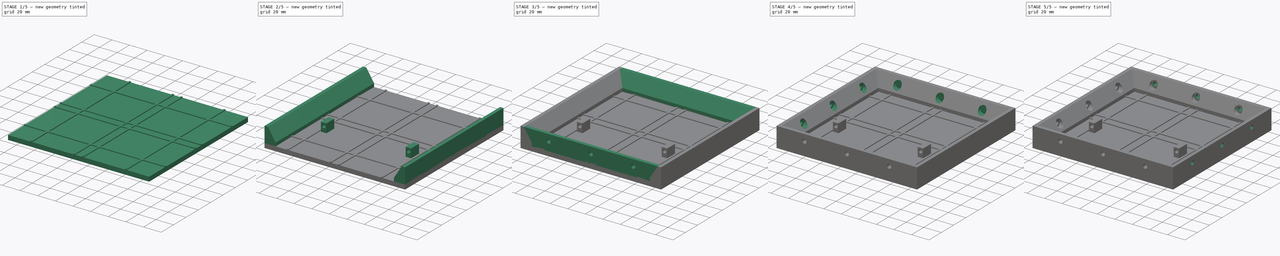
[diagram: build sequence overview — one tinted view per stage of 5, left to right]
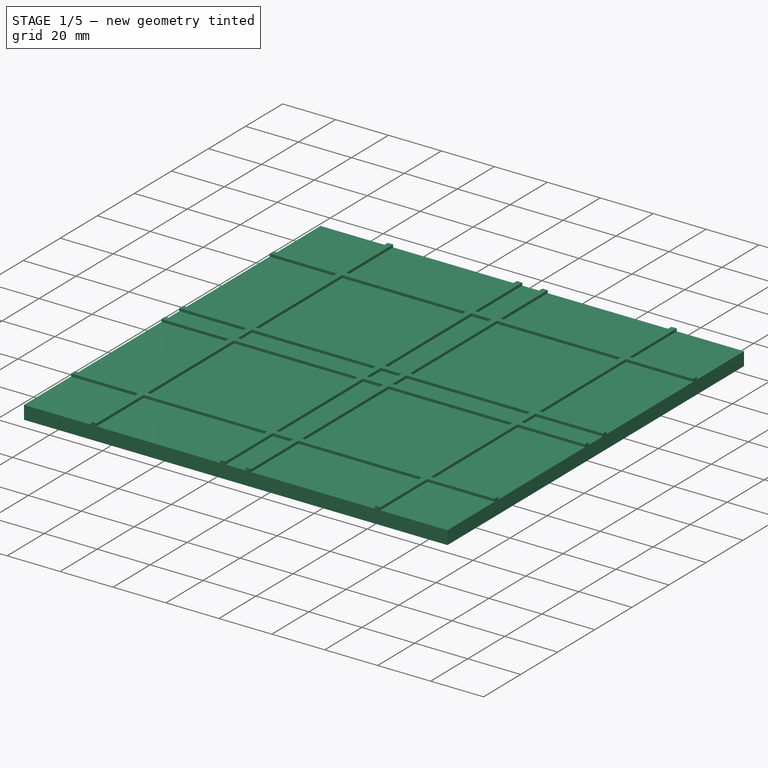
[diagram: stage 1 of 5 — iso view after this stage's code; geometry added in this stage tinted green]
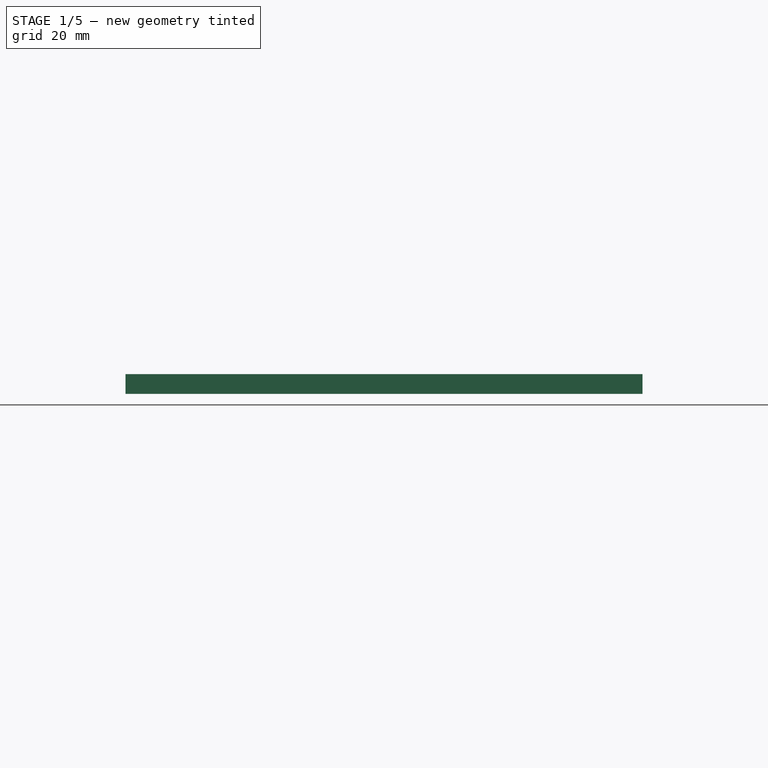
[diagram: stage 1 of 5 — front view after this stage's code; geometry added in this stage tinted green]
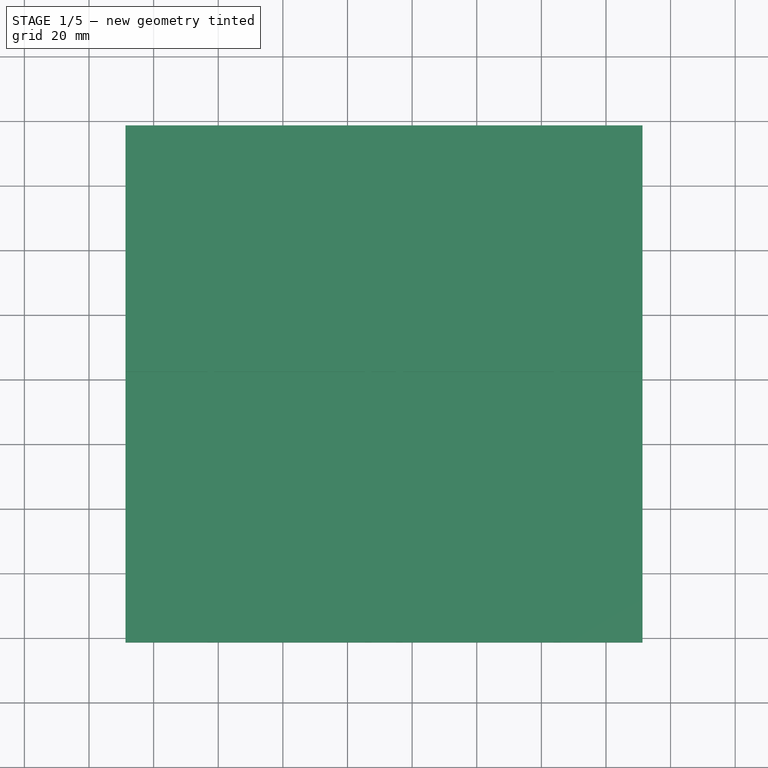
[diagram: stage 1 of 5 — top view after this stage's code; geometry added in this stage tinted green]
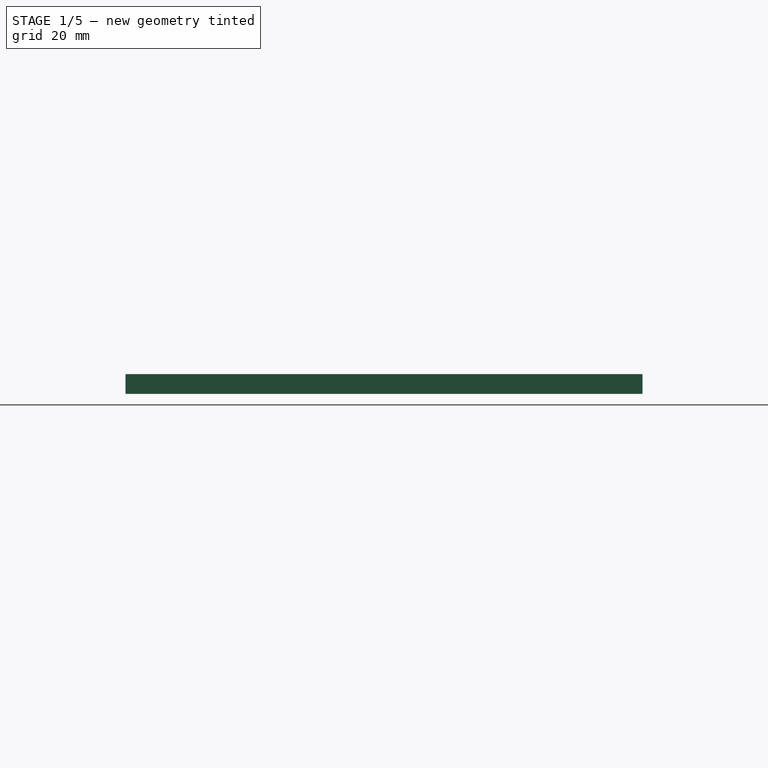
[diagram: stage 1 of 5 — right view after this stage's code; geometry added in this stage tinted green]
FCSTD DOCUMENT  (FreeCAD 0.18R16117 (Git))
Label: Bottom2
License: All rights reserved
LicenseURL: http://en.wikipedia.org/wiki/All_rights_reserved
objects: Sketcher::SketchObject×15, PartDesign::Pocket×9, PartDesign::Pad×6, PartDesign::Body×1
note: 46 computed .brp shape members not serialized (recipe doc carries the construction recipe); baked Part::Feature solids carry a one-line shape summary decoded from their .brp

FEATURE [Sketcher::SketchObject] Sketch
  MapMode = 5
  Support = -> [XY_Plane]
  sketch-geometry (4):
    g0: LineSegment StartX=-88.7119 StartY=58.658 StartZ=0 EndX=71.3081 EndY=58.658 EndZ=0
    g1: LineSegment StartX=71.3081 StartY=58.658 StartZ=0 EndX=71.3081 EndY=-101.362 EndZ=0
    g2: LineSegment StartX=71.3081 StartY=-101.362 StartZ=0 EndX=-88.7119 EndY=-101.362 EndZ=0
    g3: LineSegment StartX=-88.7119 StartY=-101.362 StartZ=0 EndX=-88.7119 EndY=58.658 EndZ=0
  constraints (10):
    c: Coincident(g0,g1)
    c: Coincident(g1,g2)
    c: Coincident(g2,g3)
    c: Coincident(g3,g0)
    c: Horizontal(g0)
    c: Horizontal(g2)
    c: Vertical(g1)
    c: Vertical(g3)
    c: Distance(g1) = 160.02
    c: Distance(g0) = 160.02
FEATURE [PartDesign::Pad] Pad
  Length = 5.08
  Length2 = 100
  Profile = -> Sketch
  Type = 0
FEATURE [Sketcher::SketchObject] Sketch001
  ExternalGeometry = -> [Pad]
  MapMode = 5
  Placement = pos=(0,0,5.08) rot=(0,0,1;0rad)
  Support = -> [Pad]
  sketch-geometry (21):
    g0: GeomPoint X=-63.3119 Y=58.658 Z=0
    g1: LineSegment StartX=-63.3119 StartY=58.658 StartZ=0 EndX=-61.2799 EndY=58.658 EndZ=0
    g2: LineSegment StartX=-61.2799 StartY=58.658 StartZ=0 EndX=-61.2799 EndY=-101.362 EndZ=0
    g3: LineSegment StartX=-61.2799 StartY=-101.362 StartZ=0 EndX=-63.3119 EndY=-101.362 EndZ=0
    g4: LineSegment StartX=-63.3119 StartY=-101.362 StartZ=0 EndX=-63.3119 EndY=58.658 EndZ=0
    g5: GeomPoint X=-63.3119 Y=-101.362 Z=0
    g6: GeomPoint X=45.9081 Y=58.658 Z=0
    g7: LineSegment StartX=43.8761 StartY=58.658 StartZ=0 EndX=45.9081 EndY=58.658 EndZ=0
    g8: LineSegment StartX=45.9081 StartY=58.658 StartZ=0 EndX=45.9081 EndY=-101.362 EndZ=0
    g9: LineSegment StartX=45.9081 StartY=-101.362 StartZ=0 EndX=43.8761 EndY=-101.362 EndZ=0
    g10: LineSegment StartX=43.8761 StartY=-101.362 StartZ=0 EndX=43.8761 EndY=58.658 EndZ=0
    g11: GeomPoint X=-12.5119 Y=58.658 Z=0
    g12: GeomPoint X=-4.89191 Y=58.658 Z=0
    g13: LineSegment StartX=-14.5439 StartY=58.658 StartZ=0 EndX=-12.5119 EndY=58.658 EndZ=0
    g14: LineSegment StartX=-12.5119 StartY=58.658 StartZ=0 EndX=-12.5119 EndY=-101.362 EndZ=0
    g15: LineSegment StartX=-12.5119 StartY=-101.362 StartZ=0 EndX=-14.5439 EndY=-101.362 EndZ=0
    g16: LineSegment StartX=-14.5439 StartY=-101.362 StartZ=0 EndX=-14.5439 EndY=58.658 EndZ=0
    g17: LineSegment StartX=-4.89191 StartY=58.658 StartZ=0 EndX=-2.85991 EndY=58.658 EndZ=0
    g18: LineSegment StartX=-2.85991 StartY=58.658 StartZ=0 EndX=-2.85991 EndY=-101.362 EndZ=0
    g19: LineSegment StartX=-2.85991 StartY=-101.362 StartZ=0 EndX=-4.89191 EndY=-101.362 EndZ=0
    g20: LineSegment StartX=-4.89191 StartY=-101.362 StartZ=0 EndX=-4.89191 EndY=58.658 EndZ=0
  constraints (53):
    c: PointOnObject(g0,g-3)
    c: Distance(g-3,g0) = 25.4
    c: Coincident(g1,g2)
    c: Coincident(g2,g3)
    c: Coincident(g3,g4)
    c: Coincident(g4,g1)
    c: Horizontal(g1)
    c: Horizontal(g3)
    c: Vertical(g2)
    c: Vertical(g4)
    c: Coincident(g1,g0)
    c: Distance(g1) = 2.032
    c: PointOnObject(g5,g-4)
    c: Coincident(g5,g3)
    c: PointOnObject(g6,g-3)
    c: Distance(g-3,g6) = 25.4
    c: Coincident(g7,g8)
    c: Coincident(g8,g9)
    c: Coincident(g9,g10)
    c: Coincident(g10,g7)
    c: Horizontal(g7)
    c: Horizontal(g9)
    c: Vertical(g8)
    c: Vertical(g10)
    c: Coincident(g7,g6)
    c: Distance(g7) = 2.032
    c: PointOnObject(g9,g-4)
    c: PointOnObject(g11,g-3)
    c: PointOnObject(g12,g-3)
    c: Distance(g11,g-6) = 76.2
    c: Distance(g12,g-5) = 76.2
    c: Coincident(g13,g14)
    c: Coincident(g14,g15)
    c: Coincident(g15,g16)
    c: Coincident(g16,g13)
    c: Horizontal(g13)
    c: Horizontal(g15)
    c: Vertical(g14)
    c: Vertical(g16)
    c: Coincident(g17,g18)
    c: Coincident(g18,g19)
    c: Coincident(g19,g20)
    c: Coincident(g20,g17)
    c: Horizontal(g17)
    c: Horizontal(g19)
    c: Vertical(g18)
    c: Vertical(g20)
    c: Coincident(g11,g13)
    c: Coincident(g17,g12)
    c: PointOnObject(g15,g-4)
    c: PointOnObject(g18,g-4)
    c: Distance(g17) = 2.032
    c: Distance(g13) = 2.032
FEATURE [PartDesign::Pad] Pad001
  BaseFeature = -> Pad
  Length = 1.016
  Length2 = 100
  Profile = -> Sketch001
  Type = 0
FEATURE [Sketcher::SketchObject] Sketch002
  ExternalGeometry = -> [Pad001]
  MapMode = 5
  Placement = pos=(0,0,5.08) rot=(0,0,1;0rad)
  Support = -> [Pad001]
  sketch-geometry (20):
    g0: GeomPoint X=-88.7119 Y=33.258 Z=0
    g1: LineSegment StartX=-88.7119 StartY=33.258 StartZ=0 EndX=71.3081 EndY=33.258 EndZ=0
    g2: LineSegment StartX=71.3081 StartY=33.258 StartZ=0 EndX=71.3081 EndY=31.226 EndZ=0
    g3: LineSegment StartX=71.3081 StartY=31.226 StartZ=0 EndX=-88.7119 EndY=31.226 EndZ=0
    g4: LineSegment StartX=-88.7119 StartY=31.226 StartZ=0 EndX=-88.7119 EndY=33.258 EndZ=0
    g5: GeomPoint X=-88.7119 Y=-75.962 Z=0
    g6: GeomPoint X=-88.7119 Y=-25.162 Z=0
    g7: GeomPoint X=-88.7119 Y=-17.542 Z=0
    g8: LineSegment StartX=-88.7119 StartY=-17.542 StartZ=0 EndX=71.3081 EndY=-17.542 EndZ=0
    g9: LineSegment StartX=71.3081 StartY=-17.542 StartZ=0 EndX=71.3081 EndY=-15.51 EndZ=0
    g10: LineSegment StartX=71.3081 StartY=-15.51 StartZ=0 EndX=-88.7119 EndY=-15.51 EndZ=0
    g11: LineSegment StartX=-88.7119 StartY=-15.51 StartZ=0 EndX=-88.7119 EndY=-17.542 EndZ=0
    g12: LineSegment StartX=-88.7119 StartY=-25.162 StartZ=0 EndX=71.3081 EndY=-25.162 EndZ=0
    g13: LineSegment StartX=71.3081 StartY=-25.162 StartZ=0 EndX=71.3081 EndY=-27.194 EndZ=0
    g14: LineSegment StartX=71.3081 StartY=-27.194 StartZ=0 EndX=-88.7119 EndY=-27.194 EndZ=0
    g15: LineSegment StartX=-88.7119 StartY=-27.194 StartZ=0 EndX=-88.7119 EndY=-25.162 EndZ=0
    g16: LineSegment StartX=-88.7119 StartY=-75.962 StartZ=0 EndX=71.3081 EndY=-75.962 EndZ=0
    g17: LineSegment StartX=71.3081 StartY=-75.962 StartZ=0 EndX=71.3081 EndY=-73.93 EndZ=0
    g18: LineSegment StartX=71.3081 StartY=-73.93 StartZ=0 EndX=-88.7119 EndY=-73.93 EndZ=0
    g19: LineSegment StartX=-88.7119 StartY=-73.93 StartZ=0 EndX=-88.7119 EndY=-75.962 EndZ=0
  constraints (52):
    c: PointOnObject(g0,g-3)
    c: Distance(g-3,g0) = 25.4
    c: Coincident(g1,g2)
    c: Coincident(g2,g3)
    c: Coincident(g3,g4)
    c: Coincident(g4,g1)
    c: Horizontal(g1)
    c: Horizontal(g3)
    c: Vertical(g2)
    c: Vertical(g4)
    c: Coincident(g1,g0)
    c: PointOnObject(g2,g-4)
    c: Distance(g4) = 2.032
    c: PointOnObject(g5,g-3)
    c: PointOnObject(g6,g-3)
    c: PointOnObject(g7,g-3)
    c: Distance(g-3,g7) = 76.2
    c: Distance(g-3,g6) = 76.2
    c: Distance(g-3,g5) = 25.4
    c: Coincident(g8,g9)
    c: Coincident(g9,g10)
    c: Coincident(g10,g11)
    c: Coincident(g11,g8)
    c: Horizontal(g8)
    c: Horizontal(g10)
    c: Vertical(g9)
    c: Vertical(g11)
    c: Coincident(g12,g13)
    c: Coincident(g13,g14)
    c: Coincident(g14,g15)
    c: Coincident(g15,g12)
    c: Horizontal(g12)
    c: Horizontal(g14)
    c: Vertical(g13)
    c: Vertical(g15)
    c: Coincident(g16,g17)
    c: Coincident(g17,g18)
    c: Coincident(g18,g19)
    c: Coincident(g19,g16)
    c: Horizontal(g16)
    c: Horizontal(g18)
    c: Vertical(g17)
    c: Vertical(g19)
    c: Coincident(g8,g7)
    c: Coincident(g12,g6)
    c: Coincident(g16,g5)
    c: Distance(g19) = 2.032
    c: Distance(g15) = 2.032
    c: Distance(g11) = 2.032
    c: PointOnObject(g9,g-4)
    c: PointOnObject(g13,g-4)
    c: PointOnObject(g17,g-4)
FEATURE [PartDesign::Pad] Pad002
  BaseFeature = -> Pad001
  Length = 1.016
  Length2 = 100
  Profile = -> Sketch002
  Type = 0
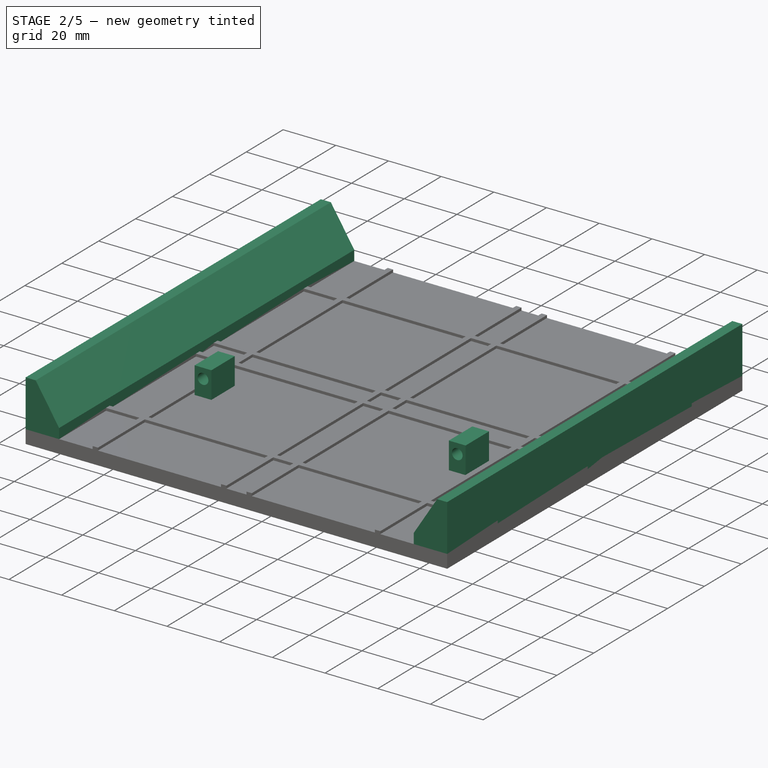
[diagram: stage 2 of 5 — iso view after this stage's code; geometry added in this stage tinted green]
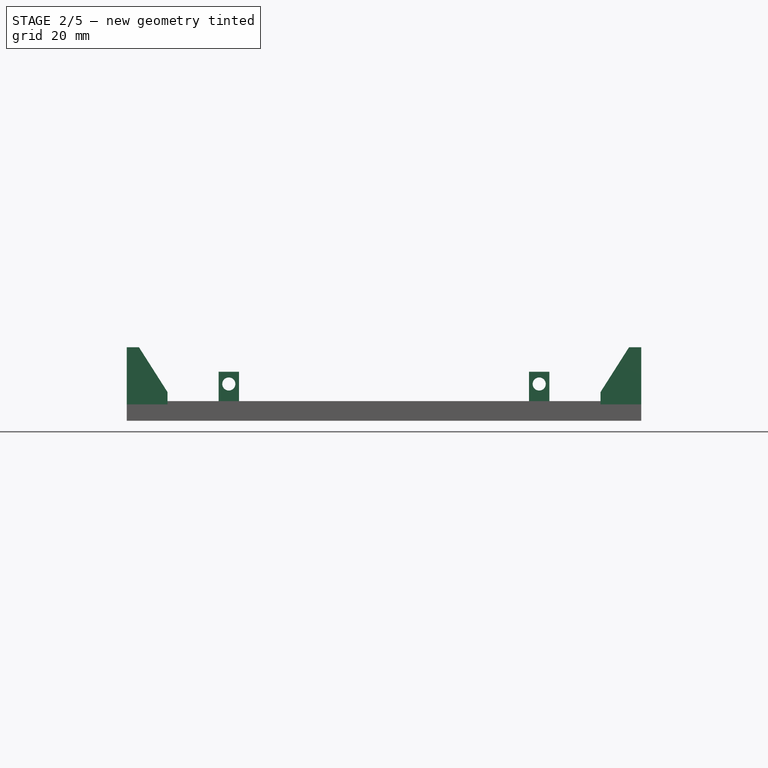
[diagram: stage 2 of 5 — front view after this stage's code; geometry added in this stage tinted green]
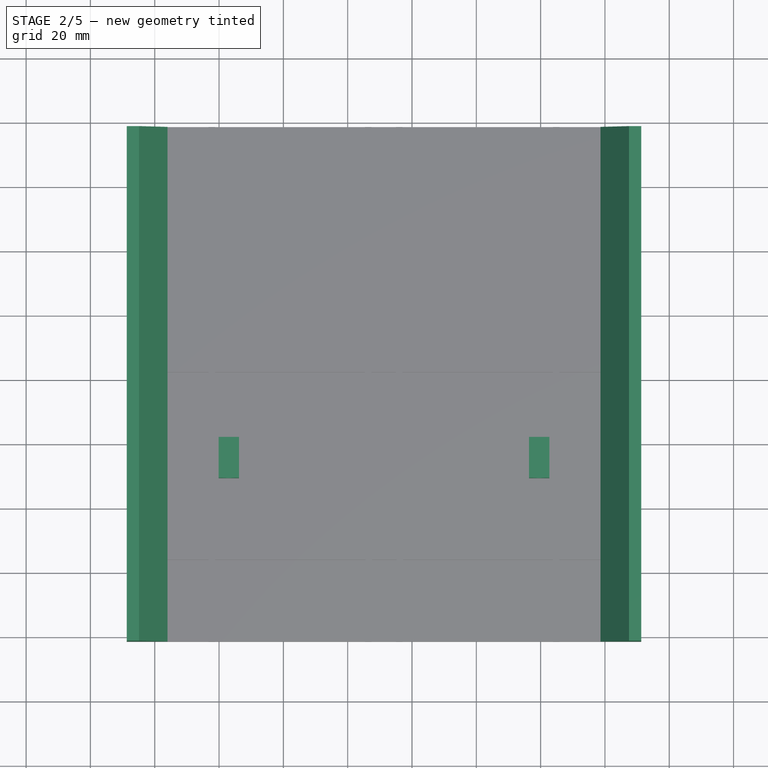
[diagram: stage 2 of 5 — top view after this stage's code; geometry added in this stage tinted green]
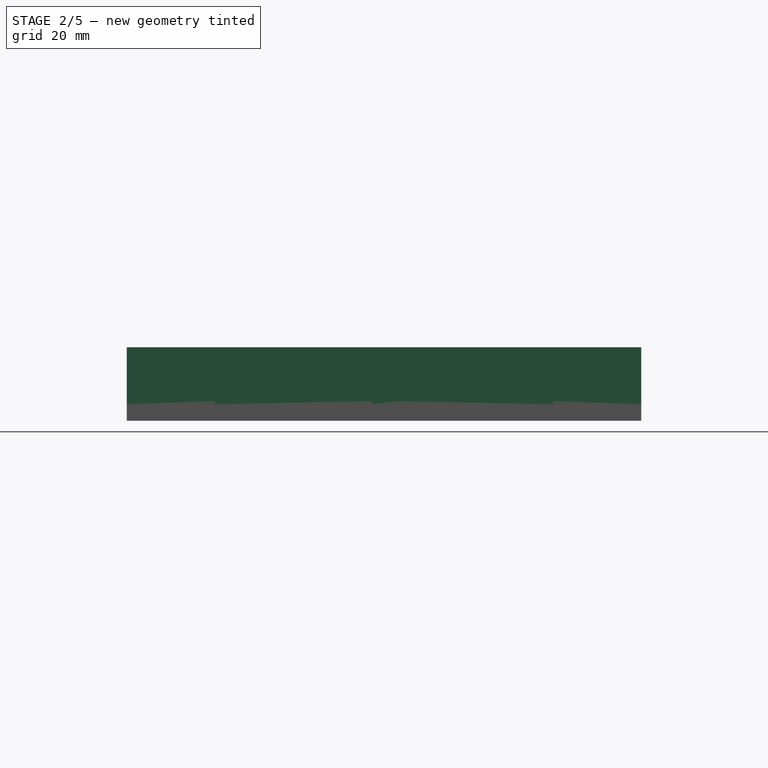
[diagram: stage 2 of 5 — right view after this stage's code; geometry added in this stage tinted green]
FEATURE [Sketcher::SketchObject] Sketch003
  ExternalGeometry = -> [Pad002]
  MapMode = 5
  Placement = pos=(0,0,5.08) rot=(0,0,1;0rad)
  Support = -> [Pad002]
  sketch-geometry (8):
    g0: LineSegment StartX=-53.7869 StartY=-50.562 StartZ=0 EndX=-60.1369 EndY=-50.562 EndZ=0
    g1: LineSegment StartX=-60.1369 StartY=-50.562 StartZ=0 EndX=-60.1369 EndY=-37.862 EndZ=0
    g2: LineSegment StartX=-60.1369 StartY=-37.862 StartZ=0 EndX=-53.7869 EndY=-37.862 EndZ=0
    g3: LineSegment StartX=-53.7869 StartY=-37.862 StartZ=0 EndX=-53.7869 EndY=-50.562 EndZ=0
    g4: LineSegment StartX=42.7331 StartY=-50.562 StartZ=0 EndX=36.3831 EndY=-50.562 EndZ=0
    g5: LineSegment StartX=36.3831 StartY=-50.562 StartZ=0 EndX=36.3831 EndY=-37.862 EndZ=0
    g6: LineSegment StartX=36.3831 StartY=-37.862 StartZ=0 EndX=42.7331 EndY=-37.862 EndZ=0
    g7: LineSegment StartX=42.7331 StartY=-37.862 StartZ=0 EndX=42.7331 EndY=-50.562 EndZ=0
  constraints (24):
    c: Coincident(g0,g1)
    c: Coincident(g1,g2)
    c: Coincident(g2,g3)
    c: Coincident(g3,g0)
    c: Horizontal(g0)
    c: Horizontal(g2)
    c: Vertical(g1)
    c: Vertical(g3)
    c: Coincident(g4,g5)
    c: Coincident(g5,g6)
    c: Coincident(g6,g7)
    c: Coincident(g7,g4)
    c: Horizontal(g4)
    c: Horizontal(g6)
    c: Vertical(g5)
    c: Vertical(g7)
    c: Distance(g2) = 6.35
    c: Distance(g1) = 12.7
    c: Distance(g4) = 6.35
    c: Distance(g5) = 12.7
    c: DistanceX(g0,g4) = 102.87
    c: Distance(g0,g-3) = 50.8
    c: Distance(g4,g-9) = 50.8
    c: Distance(g1,g-17) = 28.575
FEATURE [PartDesign::Pad] Pad003
  BaseFeature = -> Pad002
  Length = 10.16
  Length2 = 100
  Profile = -> Sketch003
  Type = 0
FEATURE [Sketcher::SketchObject] Sketch004
  ExternalGeometry = -> [Pad003]
  MapMode = 5
  Placement = pos=(0,-50.562,0) rot=(1,0,0;1.5708rad)
  Support = -> [Pad003]
  sketch-geometry (10):
    g0: LineSegment [constr] StartX=-60.1369 StartY=15.24 StartZ=0 EndX=-53.7869 EndY=5.08 EndZ=0
    g1: LineSegment [constr] StartX=-53.7869 StartY=15.24 StartZ=0 EndX=-60.1369 EndY=5.08 EndZ=0
    g2: LineSegment [constr] StartX=36.3831 StartY=15.24 StartZ=0 EndX=42.7331 EndY=5.08 EndZ=0
    g3: LineSegment [constr] StartX=42.7331 StartY=15.24 StartZ=0 EndX=36.3831 EndY=5.08 EndZ=0
    g4: Circle CenterX=39.5581 CenterY=11.43 CenterZ=0 NormalX=0 NormalY=0 NormalZ=1 AngleXU=0 Radius=2.032
    g5: Circle CenterX=-56.9619 CenterY=11.43 CenterZ=0 NormalX=0 NormalY=0 NormalZ=1 AngleXU=0 Radius=2.032
    g6: LineSegment [constr] StartX=-56.9619 StartY=15.24 StartZ=0 EndX=-56.9619 EndY=5.08 EndZ=0
    g7: GeomPoint X=-56.9619 Y=10.16 Z=0
    g8: LineSegment [constr] StartX=39.5581 StartY=15.24 StartZ=0 EndX=39.5581 EndY=5.08 EndZ=0
    g9: GeomPoint X=39.5581 Y=10.16 Z=0
  constraints (26):
    c: Coincident(g0,g-6)
    c: Coincident(g0,g-5)
    c: Coincident(g1,g-5)
    c: Coincident(g1,g-6)
    c: Coincident(g2,g-10)
    c: Coincident(g2,g-8)
    c: Coincident(g3,g-9)
    c: Coincident(g3,g-10)
    c: Equal(g5,g4)
    c: Diameter(g5) = 4.064
    c: PointOnObject(g6,g-4)
    c: PointOnObject(g6,g-3)
    c: Vertical(g6)
    c: PointOnObject(g7,g0)
    c: PointOnObject(g7,g1)
    c: PointOnObject(g7,g6)
    c: PointOnObject(g5,g6)
    c: Distance(g5,g6) = 3.81
    c: PointOnObject(g8,g-9)
    c: PointOnObject(g8,g-7)
    c: Vertical(g8)
    c: PointOnObject(g9,g2)
    c: PointOnObject(g9,g3)
    c: PointOnObject(g9,g8)
    c: PointOnObject(g4,g8)
    c: Distance(g8,g4) = 3.81
FEATURE [PartDesign::Pocket] Pocket
  BaseFeature = -> Pad003
  Length = 12.7
  Length2 = 100
  Profile = -> Sketch004
  Type = 0
FEATURE [Sketcher::SketchObject] Sketch005
  ExternalGeometry = -> [Pocket]
  MapMode = 5
  Placement = pos=(0,-101.362,0) rot=(1,0,0;1.5708rad)
  Support = -> [Pocket]
  sketch-geometry (10):
    g0: LineSegment StartX=-88.7119 StartY=5.08 StartZ=0 EndX=-88.7119 EndY=22.86 EndZ=0
    g1: LineSegment StartX=-88.7119 StartY=22.86 StartZ=0 EndX=-84.9019 EndY=22.86 EndZ=0
    g2: LineSegment StartX=-84.9019 StartY=22.86 StartZ=0 EndX=-76.0119 EndY=8.89 EndZ=0
    g3: LineSegment StartX=-76.0119 StartY=8.89 StartZ=0 EndX=-76.0119 EndY=5.08 EndZ=0
    g4: LineSegment StartX=-76.0119 StartY=5.08 StartZ=0 EndX=-88.7119 EndY=5.08 EndZ=0
    g5: LineSegment StartX=71.3081 StartY=22.86 StartZ=0 EndX=67.4981 EndY=22.86 EndZ=0
    g6: LineSegment StartX=67.4981 StartY=22.86 StartZ=0 EndX=58.6081 EndY=8.89 EndZ=0
    g7: LineSegment StartX=58.6081 StartY=8.89 StartZ=0 EndX=58.6081 EndY=5.08 EndZ=0
    g8: LineSegment StartX=58.6081 StartY=5.08 StartZ=0 EndX=71.3081 EndY=5.08 EndZ=0
    g9: LineSegment StartX=71.3081 StartY=22.86 StartZ=0 EndX=71.3081 EndY=5.08 EndZ=0
  constraints (28):
    c: Coincident(g-3,g0)
    c: Vertical(g0)
    c: Coincident(g0,g1)
    c: Horizontal(g1)
    c: Coincident(g1,g2)
    c: Coincident(g2,g3)
    c: PointOnObject(g3,g-3)
    c: Vertical(g3)
    c: Coincident(g3,g4)
    c: Coincident(g4,g0)
    c: Distance(g1) = 3.81
    c: Distance(g3) = 3.81
    c: Distance(g4) = 12.7
    c: Distance(g0) = 17.78
    c: Horizontal(g5)
    c: Coincident(g5,g6)
    c: Coincident(g6,g7)
    c: Vertical(g7)
    c: Coincident(g7,g8)
    c: Distance(g5) = 3.81
    c: Distance(g7) = 3.81
    c: Distance(g8) = 12.7
    c: Coincident(g9,g5)
    c: Coincident(g9,g8)
    c: Vertical(g9)
    c: Distance(g9) = 17.78
    c: Coincident(g8,g-4)
    c: PointOnObject(g7,g-4)
FEATURE [PartDesign::Pad] Pad004
  BaseFeature = -> Pocket
  Length = 160.02
  Length2 = 160.02
  Offset = 203.2
  Profile = -> Sketch005
  Reversed = true
  Type = 0
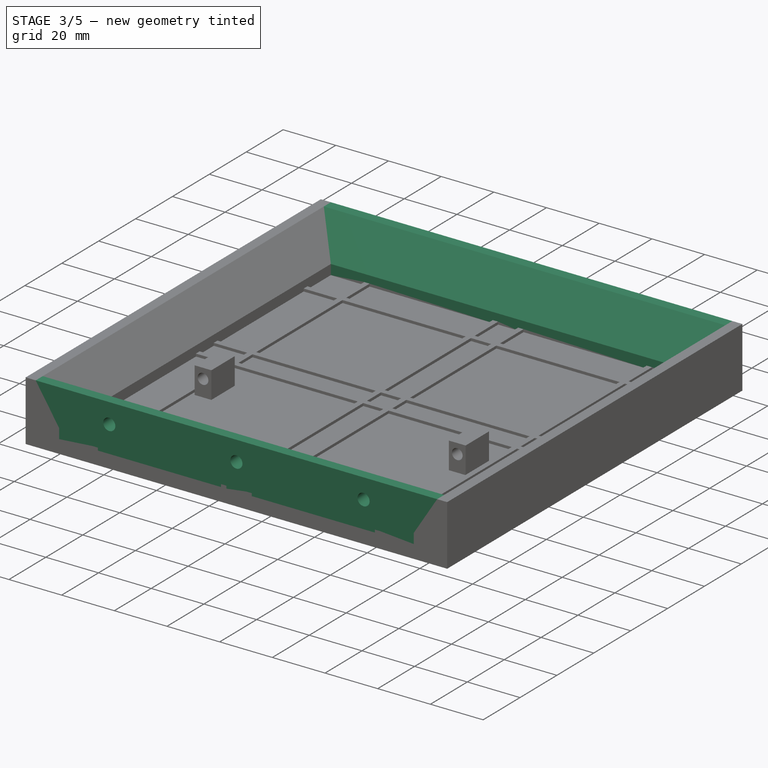
[diagram: stage 3 of 5 — iso view after this stage's code; geometry added in this stage tinted green]
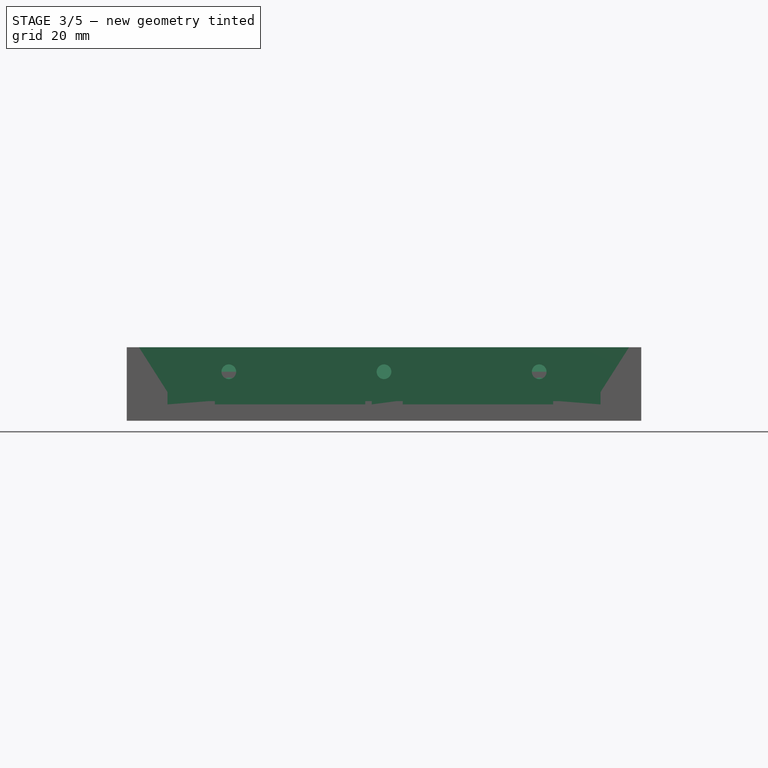
[diagram: stage 3 of 5 — front view after this stage's code; geometry added in this stage tinted green]
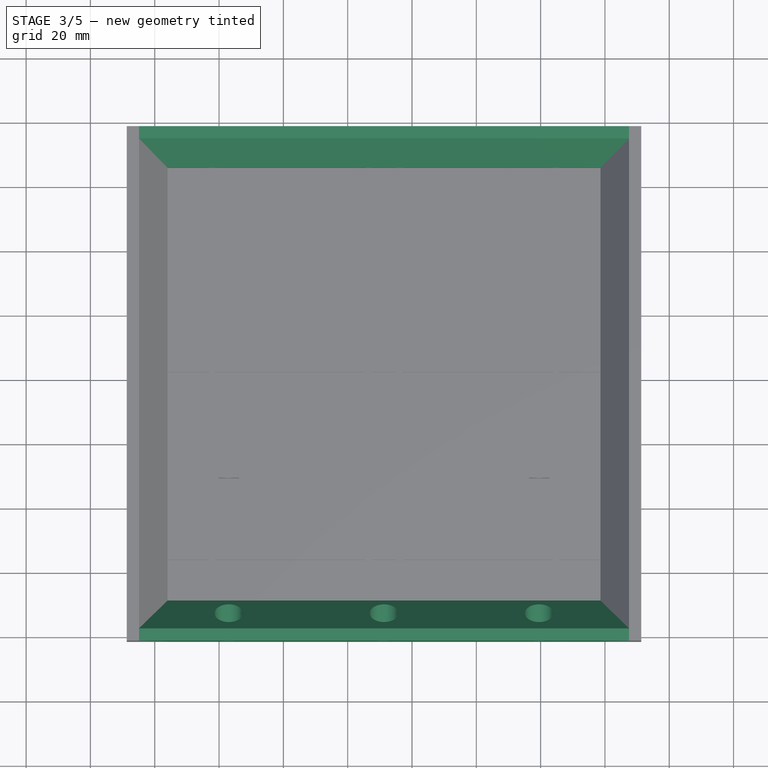
[diagram: stage 3 of 5 — top view after this stage's code; geometry added in this stage tinted green]
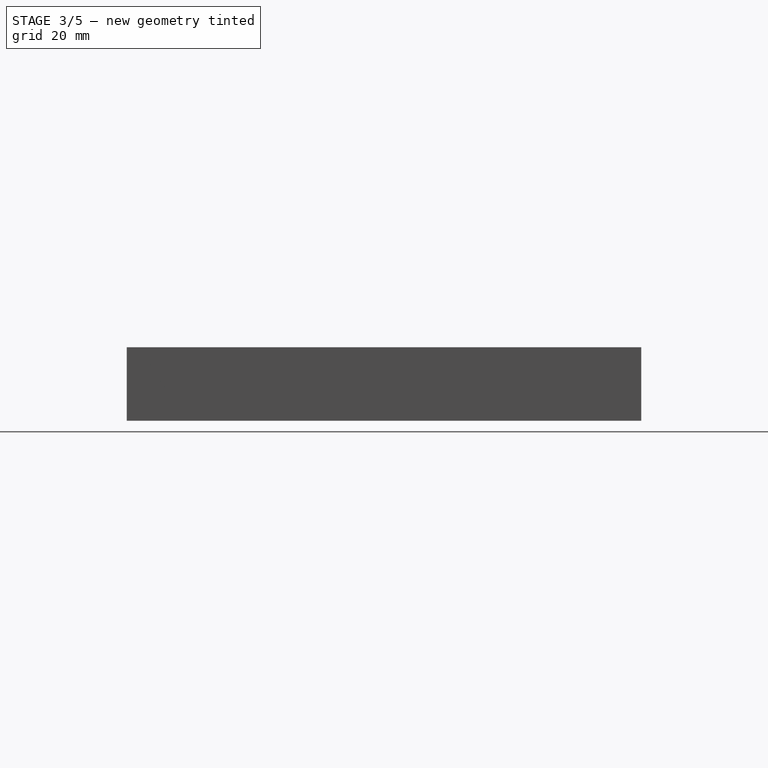
[diagram: stage 3 of 5 — right view after this stage's code; geometry added in this stage tinted green]
FEATURE [Sketcher::SketchObject] Sketch006
  ExternalGeometry = -> [Pad004]
  MapMode = 5
  Placement = pos=(71.3081,0,0) rot=(0.57735,0.57735,0.57735;2.0944rad)
  Support = -> [Pad004]
  sketch-geometry (10):
    g0: LineSegment StartX=-101.362 StartY=5.08 StartZ=0 EndX=-101.362 EndY=22.86 EndZ=0
    g1: LineSegment StartX=-101.362 StartY=22.86 StartZ=0 EndX=-97.552 EndY=22.86 EndZ=0
    g2: LineSegment StartX=-97.552 StartY=22.86 StartZ=0 EndX=-88.662 EndY=8.89 EndZ=0
    g3: LineSegment StartX=-88.662 StartY=8.89 StartZ=0 EndX=-88.662 EndY=5.08 EndZ=0
    g4: LineSegment StartX=-88.662 StartY=5.08 StartZ=0 EndX=-101.362 EndY=5.08 EndZ=0
    g5: LineSegment StartX=58.658 StartY=5.08 StartZ=0 EndX=58.658 EndY=22.86 EndZ=0
    g6: LineSegment StartX=58.658 StartY=22.86 StartZ=0 EndX=54.848 EndY=22.86 EndZ=0
    g7: LineSegment StartX=54.848 StartY=22.86 StartZ=0 EndX=45.958 EndY=8.89 EndZ=0
    g8: LineSegment StartX=45.958 StartY=8.89 StartZ=0 EndX=45.958 EndY=5.08 EndZ=0
    g9: LineSegment StartX=45.958 StartY=5.08 StartZ=0 EndX=58.658 EndY=5.08 EndZ=0
  constraints (28):
    c: Coincident(g-3,g0)
    c: Vertical(g0)
    c: Coincident(g0,g1)
    c: Horizontal(g1)
    c: Coincident(g1,g2)
    c: Coincident(g2,g3)
    c: PointOnObject(g3,g-3)
    c: Coincident(g3,g4)
    c: Coincident(g4,g0)
    c: Vertical(g3)
    c: Distance(g0) = 17.78
    c: Distance(g1) = 3.81
    c: Distance(g3) = 3.81
    c: Distance(g4) = 12.7
    c: Coincident(g-4,g5)
    c: Vertical(g5)
    c: Coincident(g5,g6)
    c: Coincident(g6,g7)
    c: Coincident(g7,g8)
    c: PointOnObject(g8,g-4)
    c: Vertical(g8)
    c: Coincident(g8,g9)
    c: Coincident(g9,g5)
    c: Horizontal(g6)
    c: Distance(g5) = 17.78
    c: Distance(g8) = 3.81
    c: Distance(g9) = 12.7
    c: Distance(g6) = 3.81
FEATURE [PartDesign::Pad] Pad005
  BaseFeature = -> Pad004
  Length = 160.02
  Length2 = 100
  Profile = -> Sketch006
  Reversed = true
  Type = 0
FEATURE [Sketcher::SketchObject] Sketch007
  ExternalGeometry = -> [Pad005]
  MapMode = 5
  Placement = pos=(0,-88.662,0) rot=(0,0.707107,0.707107;3.14159rad)
  Support = -> [Pad005]
  sketch-geometry (9):
    g0: LineSegment [constr] StartX=-39.5581 StartY=5.08 StartZ=0 EndX=-39.5581 EndY=15.24 EndZ=0
    g1: LineSegment [constr] StartX=-39.5581 StartY=15.24 StartZ=0 EndX=-71.3081 EndY=15.24 EndZ=0
    g2: Circle CenterX=-39.5581 CenterY=15.24 CenterZ=0 NormalX=0 NormalY=0 NormalZ=1 AngleXU=0 Radius=4.445
    g3: LineSegment [constr] StartX=88.7119 StartY=15.24 StartZ=0 EndX=56.9619 EndY=15.24 EndZ=0
    g4: LineSegment [constr] StartX=56.9619 StartY=15.24 StartZ=0 EndX=56.9619 EndY=5.08 EndZ=0
    g5: LineSegment [constr] StartX=-39.5581 StartY=15.24 StartZ=0 EndX=8.70191 EndY=15.24 EndZ=0
    g6: LineSegment [constr] StartX=8.70191 StartY=15.24 StartZ=0 EndX=56.9619 EndY=15.24 EndZ=0
    g7: Circle CenterX=56.9619 CenterY=15.24 CenterZ=0 NormalX=0 NormalY=0 NormalZ=1 AngleXU=0 Radius=4.445
    g8: Circle CenterX=8.70191 CenterY=15.24 CenterZ=0 NormalX=0 NormalY=0 NormalZ=1 AngleXU=0 Radius=4.445
  constraints (25):
    c: PointOnObject(g0,g-5)
    c: Vertical(g0)
    c: Coincident(g1,g0)
    c: PointOnObject(g1,g-12)
    c: Horizontal(g1)
    c: Coincident(g2,g0)
    c: Diameter(g2) = 8.89
    c: Distance(g1) = 31.75
    c: Distance(g0) = 10.16
    c: PointOnObject(g3,g-17)
    c: Horizontal(g3)
    c: Coincident(g4,g3)
    c: PointOnObject(g4,g-9)
    c: Vertical(g4)
    c: Coincident(g5,g2)
    c: Horizontal(g5)
    c: Coincident(g6,g5)
    c: Coincident(g6,g3)
    c: Horizontal(g6)
    c: Equal(g6,g5)
    c: Equal(g3,g1)
    c: Coincident(g7,g3)
    c: Equal(g2,g7)
    c: Coincident(g8,g5)
    c: Equal(g8,g2)
FEATURE [PartDesign::Pocket] Pocket001
  BaseFeature = -> Pad005
  Length = 6.858
  Length2 = 100
  Profile = -> Sketch007
  Type = 0
FEATURE [Sketcher::SketchObject] Sketch008
  ExternalGeometry = -> [Pad005]
  MapMode = 5
  Placement = pos=(0,-88.662,0) rot=(0,0.707107,0.707107;3.14159rad)
  Support = -> [Pad005]
  sketch-geometry (9):
    g0: LineSegment [constr] StartX=-39.5581 StartY=5.08 StartZ=0 EndX=-39.5581 EndY=15.24 EndZ=0
    g1: LineSegment [constr] StartX=-39.5581 StartY=15.24 StartZ=0 EndX=-71.3081 EndY=15.24 EndZ=0
    g2: Circle CenterX=-39.5581 CenterY=15.24 CenterZ=0 NormalX=0 NormalY=0 NormalZ=1 AngleXU=0 Radius=2.286
    g3: LineSegment [constr] StartX=88.7119 StartY=15.24 StartZ=0 EndX=56.9619 EndY=15.24 EndZ=0
    g4: LineSegment [constr] StartX=56.9619 StartY=15.24 StartZ=0 EndX=56.9619 EndY=5.08 EndZ=0
    g5: LineSegment [constr] StartX=-39.5581 StartY=15.24 StartZ=0 EndX=8.70191 EndY=15.24 EndZ=0
    g6: LineSegment [constr] StartX=8.70191 StartY=15.24 StartZ=0 EndX=56.9619 EndY=15.24 EndZ=0
    g7: Circle CenterX=56.9619 CenterY=15.24 CenterZ=0 NormalX=0 NormalY=0 NormalZ=1 AngleXU=0 Radius=2.286
    g8: Circle CenterX=8.70191 CenterY=15.24 CenterZ=0 NormalX=0 NormalY=0 NormalZ=1 AngleXU=0 Radius=2.286
  constraints (25):
    c: PointOnObject(g0,g-5)
    c: Vertical(g0)
    c: Coincident(g1,g0)
    c: PointOnObject(g1,g-12)
    c: Horizontal(g1)
    c: Coincident(g2,g0)
    c: Diameter(g2) = 4.572
    c: Distance(g1) = 31.75
    c: Distance(g0) = 10.16
    c: PointOnObject(g3,g-17)
    c: Horizontal(g3)
    c: Coincident(g4,g3)
    c: PointOnObject(g4,g-9)
    c: Vertical(g4)
    c: Coincident(g5,g2)
    c: Horizontal(g5)
    c: Coincident(g6,g5)
    c: Coincident(g6,g3)
    c: Horizontal(g6)
    c: Equal(g6,g5)
    c: Equal(g3,g1)
    c: Coincident(g7,g3)
    c: Equal(g2,g7)
    c: Coincident(g8,g5)
    c: Equal(g8,g2)
FEATURE [PartDesign::Pocket] Pocket002
  BaseFeature = -> Pocket001
  Length = 12.7
  Length2 = 100
  Profile = -> Sketch008
  Type = 0
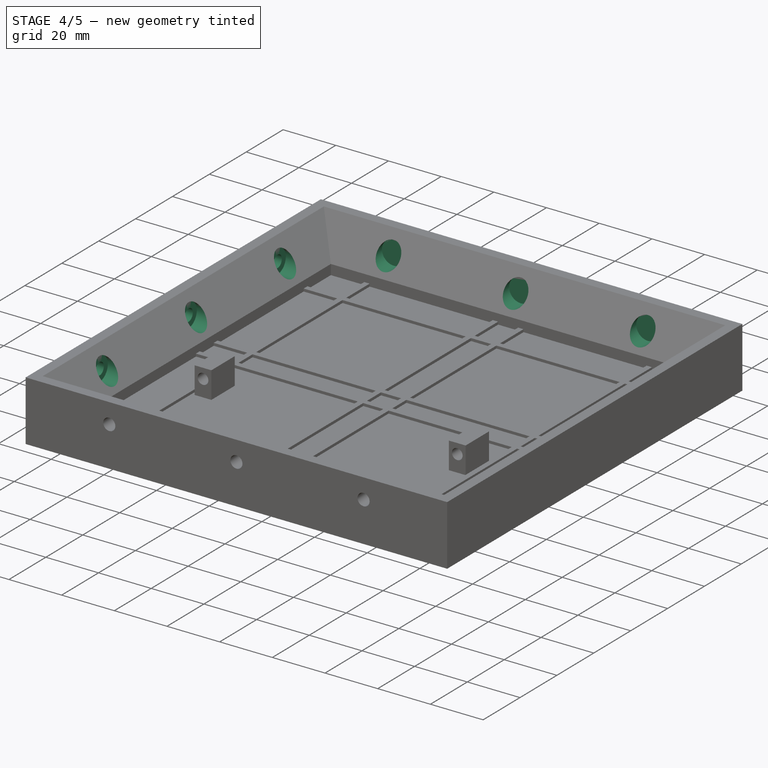
[diagram: stage 4 of 5 — iso view after this stage's code; geometry added in this stage tinted green]
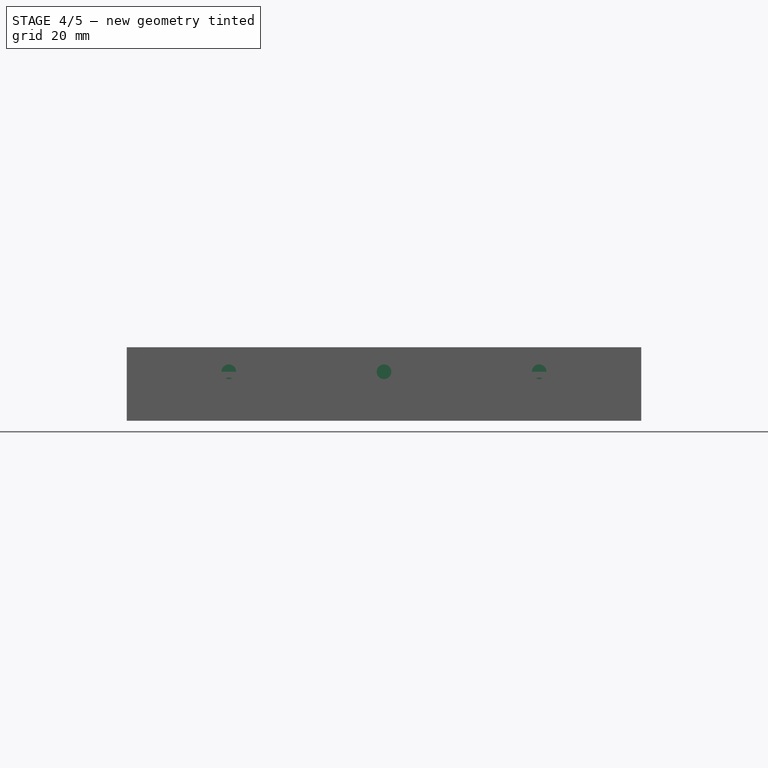
[diagram: stage 4 of 5 — front view after this stage's code; geometry added in this stage tinted green]
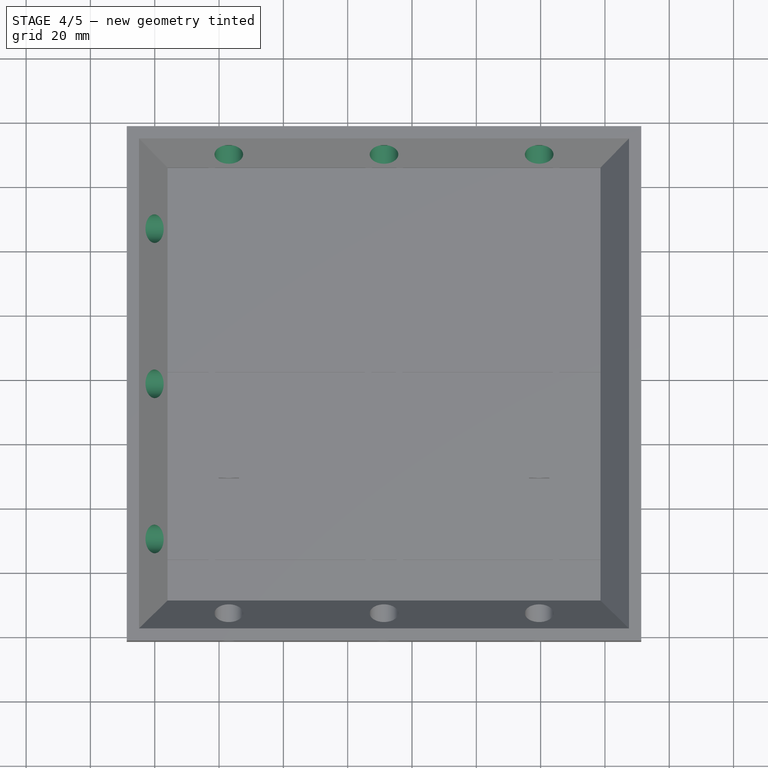
[diagram: stage 4 of 5 — top view after this stage's code; geometry added in this stage tinted green]
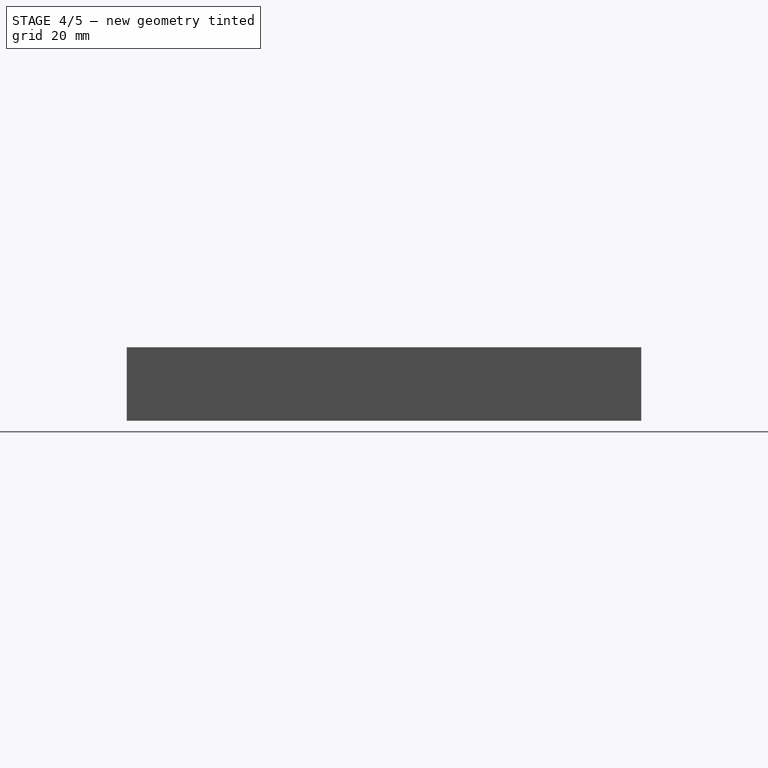
[diagram: stage 4 of 5 — right view after this stage's code; geometry added in this stage tinted green]
FEATURE [Sketcher::SketchObject] Sketch009
  ExternalGeometry = -> [Pocket002]
  MapMode = 5
  Placement = pos=(-76.0119,0,0) rot=(0.57735,0.57735,0.57735;2.0944rad)
  Support = -> [Pocket002]
  sketch-geometry (8):
    g0: LineSegment [constr] StartX=-101.362 StartY=15.24 StartZ=0 EndX=-69.612 EndY=15.24 EndZ=0
    g1: LineSegment [constr] StartX=-69.612 StartY=15.24 StartZ=0 EndX=-21.352 EndY=15.24 EndZ=0
    g2: LineSegment [constr] StartX=-21.352 StartY=15.24 StartZ=0 EndX=26.908 EndY=15.24 EndZ=0
    g3: LineSegment [constr] StartX=26.908 StartY=15.24 StartZ=0 EndX=58.658 EndY=15.24 EndZ=0
    g4: LineSegment [constr] StartX=-69.612 StartY=15.24 StartZ=0 EndX=-69.612 EndY=5.08 EndZ=0
    g5: Circle CenterX=-69.612 CenterY=15.24 CenterZ=0 NormalX=0 NormalY=0 NormalZ=1 AngleXU=0 Radius=4.445
    g6: Circle CenterX=-21.352 CenterY=15.24 CenterZ=0 NormalX=0 NormalY=0 NormalZ=1 AngleXU=0 Radius=4.445
    g7: Circle CenterX=26.908 CenterY=15.24 CenterZ=0 NormalX=0 NormalY=0 NormalZ=1 AngleXU=0 Radius=4.445
  constraints (22):
    c: PointOnObject(g0,g-3)
    c: Horizontal(g0)
    c: Coincident(g1,g0)
    c: Horizontal(g1)
    c: Coincident(g2,g1)
    c: Horizontal(g2)
    c: Coincident(g3,g2)
    c: PointOnObject(g3,g-4)
    c: Horizontal(g3)
    c: Distance(g0) = 31.75
    c: Equal(g0,g3)
    c: Equal(g2,g1)
    c: Coincident(g4,g0)
    c: PointOnObject(g4,g-7)
    c: Vertical(g4)
    c: Distance(g4) = 10.16
    c: Coincident(g5,g0)
    c: Coincident(g6,g1)
    c: Coincident(g7,g2)
    c: Equal(g5,g6)
    c: Equal(g6,g7)
    c: Diameter(g5) = 8.89
FEATURE [PartDesign::Pocket] Pocket003
  BaseFeature = -> Pocket002
  Length = 6.858
  Length2 = 100
  Profile = -> Sketch009
  Type = 0
FEATURE [Sketcher::SketchObject] Sketch010
  ExternalGeometry = -> [Pocket003]
  MapMode = 5
  Placement = pos=(-76.0119,0,0) rot=(0.57735,0.57735,0.57735;2.0944rad)
  Support = -> [Pocket003]
  sketch-geometry (8):
    g0: LineSegment [constr] StartX=-101.362 StartY=15.24 StartZ=0 EndX=-69.612 EndY=15.24 EndZ=0
    g1: LineSegment [constr] StartX=-69.612 StartY=15.24 StartZ=0 EndX=-69.612 EndY=5.08 EndZ=0
    g2: LineSegment [constr] StartX=-69.612 StartY=15.24 StartZ=0 EndX=-21.352 EndY=15.24 EndZ=0
    g3: LineSegment [constr] StartX=-21.352 StartY=15.24 StartZ=0 EndX=26.908 EndY=15.24 EndZ=0
    g4: LineSegment [constr] StartX=26.908 StartY=15.24 StartZ=0 EndX=58.658 EndY=15.24 EndZ=0
    g5: Circle CenterX=-69.612 CenterY=15.24 CenterZ=0 NormalX=0 NormalY=0 NormalZ=1 AngleXU=0 Radius=2.286
    g6: Circle CenterX=-21.352 CenterY=15.24 CenterZ=0 NormalX=0 NormalY=0 NormalZ=1 AngleXU=0 Radius=2.286
    g7: Circle CenterX=26.908 CenterY=15.24 CenterZ=0 NormalX=0 NormalY=0 NormalZ=1 AngleXU=0 Radius=2.286
  constraints (22):
    c: PointOnObject(g0,g-3)
    c: Horizontal(g0)
    c: Coincident(g1,g0)
    c: PointOnObject(g1,g-5)
    c: Vertical(g1)
    c: Coincident(g2,g0)
    c: Horizontal(g2)
    c: Coincident(g3,g2)
    c: Horizontal(g3)
    c: Coincident(g4,g3)
    c: PointOnObject(g4,g-4)
    c: Horizontal(g4)
    c: Equal(g0,g4)
    c: Equal(g2,g3)
    c: Distance(g0) = 31.75
    c: Distance(g1) = 10.16
    c: Coincident(g5,g0)
    c: Coincident(g6,g2)
    c: Coincident(g7,g3)
    c: Equal(g5,g6)
    c: Equal(g6,g7)
    c: Diameter(g5) = 4.572
FEATURE [PartDesign::Pocket] Pocket004
  BaseFeature = -> Pocket003
  Length = 12.7
  Length2 = 100
  Profile = -> Sketch010
  Type = 0
FEATURE [Sketcher::SketchObject] Sketch011
  ExternalGeometry = -> [Pocket004]
  MapMode = 5
  Placement = pos=(0,45.958,0) rot=(1,0,0;1.5708rad)
  Support = -> [Pocket004]
  sketch-geometry (8):
    g0: LineSegment [constr] StartX=-88.7119 StartY=15.24 StartZ=0 EndX=-56.9619 EndY=15.24 EndZ=0
    g1: LineSegment [constr] StartX=-56.9619 StartY=15.24 StartZ=0 EndX=-56.9619 EndY=5.08 EndZ=0
    g2: LineSegment [constr] StartX=-56.9619 StartY=15.24 StartZ=0 EndX=-8.70191 EndY=15.24 EndZ=0
    g3: LineSegment [constr] StartX=-8.70191 StartY=15.24 StartZ=0 EndX=39.5581 EndY=15.24 EndZ=0
    g4: LineSegment [constr] StartX=39.5581 StartY=15.24 StartZ=0 EndX=71.3081 EndY=15.24 EndZ=0
    g5: Circle CenterX=-56.9619 CenterY=15.24 CenterZ=0 NormalX=0 NormalY=0 NormalZ=1 AngleXU=0 Radius=4.445
    g6: Circle CenterX=-8.70191 CenterY=15.24 CenterZ=0 NormalX=0 NormalY=0 NormalZ=1 AngleXU=0 Radius=4.445
    g7: Circle CenterX=39.5581 CenterY=15.24 CenterZ=0 NormalX=0 NormalY=0 NormalZ=1 AngleXU=0 Radius=4.445
  constraints (22):
    c: PointOnObject(g0,g-3)
    c: Horizontal(g0)
    c: Coincident(g1,g0)
    c: PointOnObject(g1,g-5)
    c: Vertical(g1)
    c: Coincident(g2,g0)
    c: Horizontal(g2)
    c: Coincident(g3,g2)
    c: Horizontal(g3)
    c: Coincident(g4,g3)
    c: PointOnObject(g4,g-4)
    c: Horizontal(g4)
    c: Equal(g0,g4)
    c: Equal(g2,g3)
    c: Distance(g0) = 31.75
    c: Distance(g1) = 10.16
    c: Coincident(g5,g0)
    c: Coincident(g6,g2)
    c: Coincident(g7,g3)
    c: Equal(g5,g6)
    c: Equal(g6,g7)
    c: Diameter(g5) = 8.89
FEATURE [PartDesign::Pocket] Pocket005
  BaseFeature = -> Pocket004
  Length = 6.858
  Length2 = 100
  Profile = -> Sketch011
  Type = 0
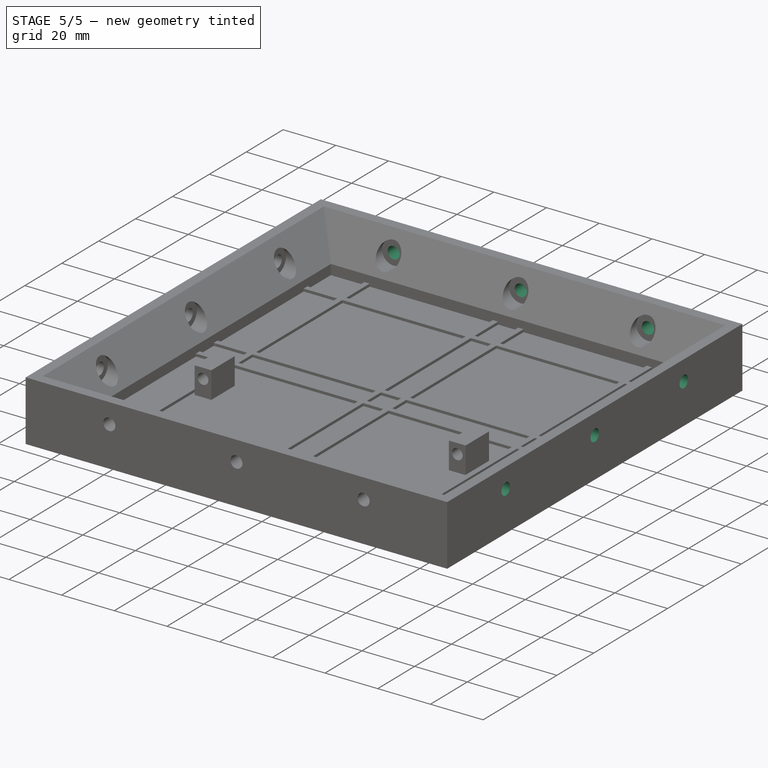
[diagram: stage 5 of 5 — iso view after this stage's code; geometry added in this stage tinted green]
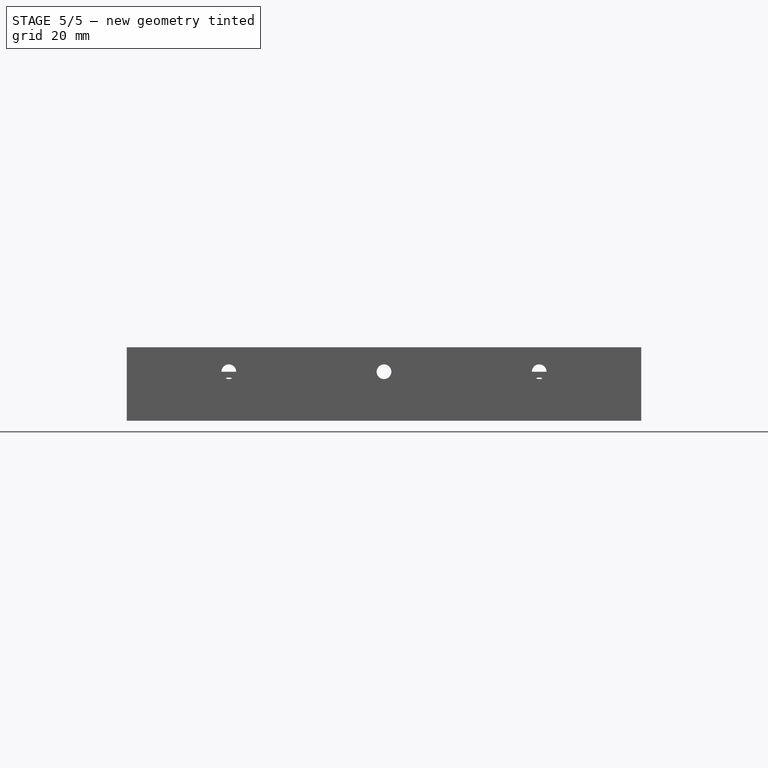
[diagram: stage 5 of 5 — front view after this stage's code; geometry added in this stage tinted green]
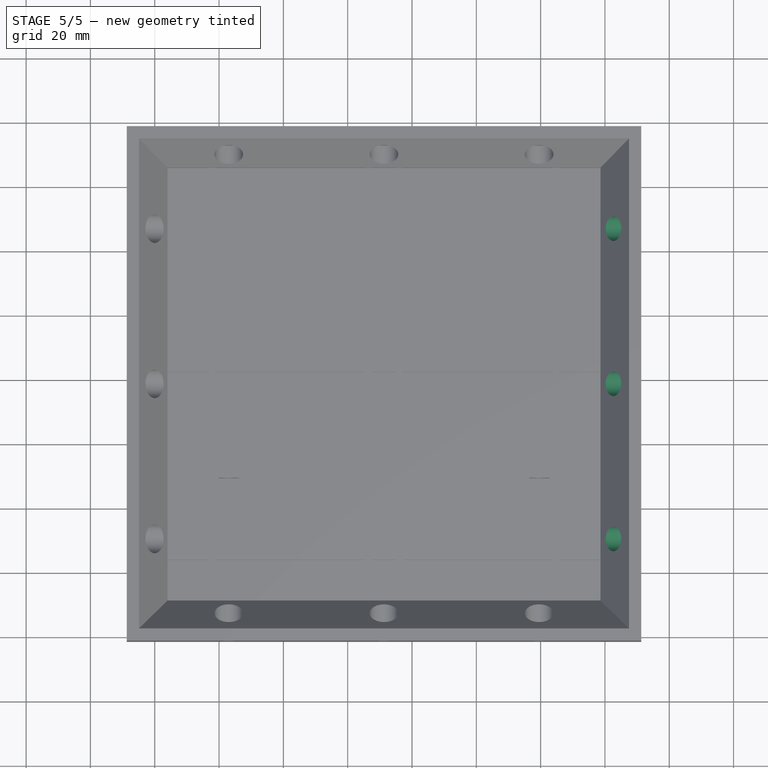
[diagram: stage 5 of 5 — top view after this stage's code; geometry added in this stage tinted green]
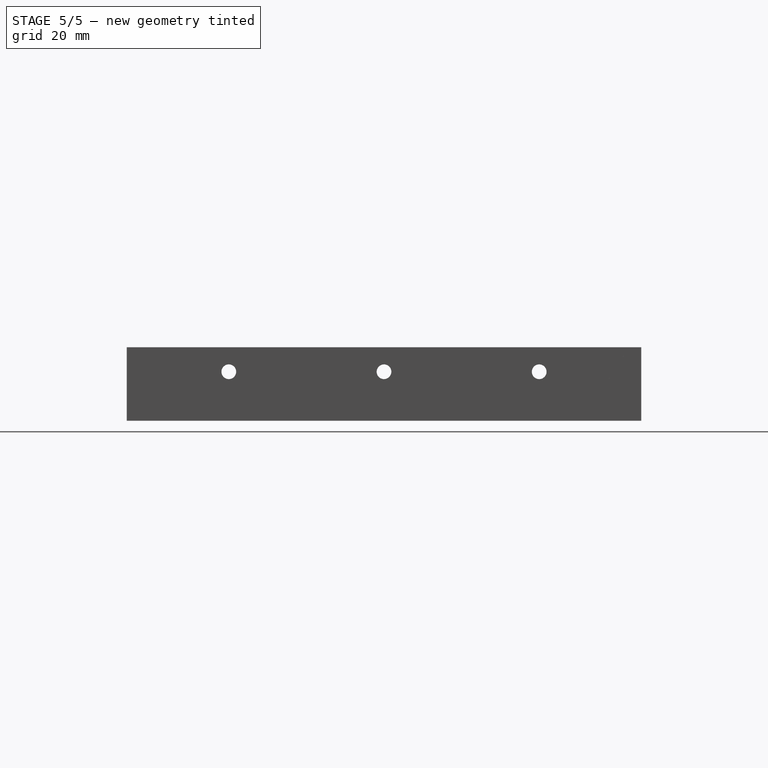
[diagram: stage 5 of 5 — right view after this stage's code; geometry added in this stage tinted green]
FEATURE [Sketcher::SketchObject] Sketch012
  ExternalGeometry = -> [Pocket005]
  MapMode = 5
  Placement = pos=(58.6081,0,0) rot=(0.57735,-0.57735,-0.57735;2.0944rad)
  Support = -> [Pocket005]
  sketch-geometry (8):
    g0: LineSegment [constr] StartX=-58.658 StartY=15.24 StartZ=0 EndX=-26.908 EndY=15.24 EndZ=0
    g1: LineSegment [constr] StartX=-26.908 StartY=15.24 StartZ=0 EndX=21.352 EndY=15.24 EndZ=0
    g2: LineSegment [constr] StartX=21.352 StartY=15.24 StartZ=0 EndX=69.612 EndY=15.24 EndZ=0
    g3: LineSegment [constr] StartX=69.612 StartY=15.24 StartZ=0 EndX=101.362 EndY=15.24 EndZ=0
    g4: LineSegment [constr] StartX=-26.908 StartY=15.24 StartZ=0 EndX=-26.908 EndY=5.08 EndZ=0
    g5: Circle CenterX=-26.908 CenterY=15.24 CenterZ=0 NormalX=0 NormalY=0 NormalZ=1 AngleXU=0 Radius=3.81
    g6: Circle CenterX=21.352 CenterY=15.24 CenterZ=0 NormalX=0 NormalY=0 NormalZ=1 AngleXU=0 Radius=3.81
    g7: Circle CenterX=69.612 CenterY=15.24 CenterZ=0 NormalX=0 NormalY=0 NormalZ=1 AngleXU=0 Radius=3.81
  constraints (22):
    c: PointOnObject(g0,g-3)
    c: Horizontal(g0)
    c: Coincident(g1,g0)
    c: Horizontal(g1)
    c: Coincident(g2,g1)
    c: Horizontal(g2)
    c: Coincident(g3,g2)
    c: PointOnObject(g3,g-4)
    c: Horizontal(g3)
    c: Coincident(g4,g0)
    c: PointOnObject(g4,g-5)
    c: Vertical(g4)
    c: Equal(g0,g3)
    c: Equal(g1,g2)
    c: Distance(g0) = 31.75
    c: Distance(g4) = 10.16
    c: Coincident(g5,g0)
    c: Coincident(g6,g1)
    c: Coincident(g7,g2)
    c: Equal(g5,g6)
    c: Equal(g6,g7)
    c: Diameter(g5) = 7.62
FEATURE [PartDesign::Pocket] Pocket006
  BaseFeature = -> Pocket005
  Length = 6.858
  Length2 = 100
  Profile = -> Sketch012
  Type = 0
FEATURE [Sketcher::SketchObject] Sketch013
  ExternalGeometry = -> [Pocket005]
  MapMode = 5
  Placement = pos=(58.6081,0,0) rot=(0.57735,-0.57735,-0.57735;2.0944rad)
  Support = -> [Pocket005]
  sketch-geometry (8):
    g0: LineSegment [constr] StartX=-58.658 StartY=15.24 StartZ=0 EndX=-26.908 EndY=15.24 EndZ=0
    g1: LineSegment [constr] StartX=-26.908 StartY=15.24 StartZ=0 EndX=21.352 EndY=15.24 EndZ=0
    g2: LineSegment [constr] StartX=21.352 StartY=15.24 StartZ=0 EndX=69.612 EndY=15.24 EndZ=0
    g3: LineSegment [constr] StartX=69.612 StartY=15.24 StartZ=0 EndX=101.362 EndY=15.24 EndZ=0
    g4: LineSegment [constr] StartX=-26.908 StartY=15.24 StartZ=0 EndX=-26.908 EndY=5.08 EndZ=0
    g5: Circle CenterX=-26.908 CenterY=15.24 CenterZ=0 NormalX=0 NormalY=0 NormalZ=1 AngleXU=0 Radius=2.286
    g6: Circle CenterX=21.352 CenterY=15.24 CenterZ=0 NormalX=0 NormalY=0 NormalZ=1 AngleXU=0 Radius=2.286
    g7: Circle CenterX=69.612 CenterY=15.24 CenterZ=0 NormalX=0 NormalY=0 NormalZ=1 AngleXU=0 Radius=2.286
  constraints (22):
    c: PointOnObject(g0,g-3)
    c: Horizontal(g0)
    c: Coincident(g1,g0)
    c: Horizontal(g1)
    c: Coincident(g2,g1)
    c: Horizontal(g2)
    c: Coincident(g3,g2)
    c: PointOnObject(g3,g-4)
    c: Horizontal(g3)
    c: Coincident(g4,g0)
    c: PointOnObject(g4,g-5)
    c: Vertical(g4)
    c: Equal(g0,g3)
    c: Equal(g1,g2)
    c: Distance(g0) = 31.75
    c: Distance(g4) = 10.16
    c: Coincident(g5,g0)
    c: Coincident(g6,g1)
    c: Coincident(g7,g2)
    c: Equal(g5,g6)
    c: Equal(g6,g7)
    c: Diameter(g5) = 4.572
FEATURE [PartDesign::Pocket] Pocket007
  BaseFeature = -> Pocket006
  Length = 12.7
  Length2 = 100
  Profile = -> Sketch013
  Type = 0
FEATURE [Sketcher::SketchObject] Sketch014
  ExternalGeometry = -> [Pocket004]
  MapMode = 5
  Placement = pos=(0,45.958,0) rot=(1,0,0;1.5708rad)
  Support = -> [Pocket004]
  sketch-geometry (8):
    g0: LineSegment [constr] StartX=-88.7119 StartY=15.24 StartZ=0 EndX=-56.9619 EndY=15.24 EndZ=0
    g1: LineSegment [constr] StartX=-56.9619 StartY=15.24 StartZ=0 EndX=-56.9619 EndY=5.08 EndZ=0
    g2: LineSegment [constr] StartX=-56.9619 StartY=15.24 StartZ=0 EndX=-8.70191 EndY=15.24 EndZ=0
    g3: LineSegment [constr] StartX=-8.70191 StartY=15.24 StartZ=0 EndX=39.5581 EndY=15.24 EndZ=0
    g4: LineSegment [constr] StartX=39.5581 StartY=15.24 StartZ=0 EndX=71.3081 EndY=15.24 EndZ=0
    g5: Circle CenterX=-56.9619 CenterY=15.24 CenterZ=0 NormalX=0 NormalY=0 NormalZ=1 AngleXU=0 Radius=2.286
    g6: Circle CenterX=-8.70191 CenterY=15.24 CenterZ=0 NormalX=0 NormalY=0 NormalZ=1 AngleXU=0 Radius=2.286
    g7: Circle CenterX=39.5581 CenterY=15.24 CenterZ=0 NormalX=0 NormalY=0 NormalZ=1 AngleXU=0 Radius=2.286
  constraints (22):
    c: PointOnObject(g0,g-3)
    c: Horizontal(g0)
    c: Coincident(g1,g0)
    c: PointOnObject(g1,g-5)
    c: Vertical(g1)
    c: Coincident(g2,g0)
    c: Horizontal(g2)
    c: Coincident(g3,g2)
    c: Horizontal(g3)
    c: Coincident(g4,g3)
    c: PointOnObject(g4,g-4)
    c: Horizontal(g4)
    c: Equal(g0,g4)
    c: Equal(g2,g3)
    c: Distance(g0) = 31.75
    c: Distance(g1) = 10.16
    c: Coincident(g5,g0)
    c: Coincident(g6,g2)
    c: Coincident(g7,g3)
    c: Equal(g5,g6)
    c: Equal(g6,g7)
    c: Diameter(g5) = 4.572
FEATURE [PartDesign::Pocket] Pocket008
  BaseFeature = -> Pocket007
  Length = 12.7
  Length2 = 100
  Profile = -> Sketch014
  Type = 0
FEATURE [PartDesign::Body] Body
  Group = -> [Sketch,Pad,Sketch001,Pad001,Sketch002,Pad002,Sketch003,Pad003,Sketch004,Pocket,Sketch005,Pad004,Sketch006,Pad005,Sketch007,Pocket001,Sketch008,Pocket002,Sketch009,Pocket003,Sketch010,Pocket004,Sketch011,Pocket005,Sketch012,Pocket006,Sketch013,Pocket007,Sketch014,Pocket008]
  Origin = -> Origin
  Tip = -> Pocket008
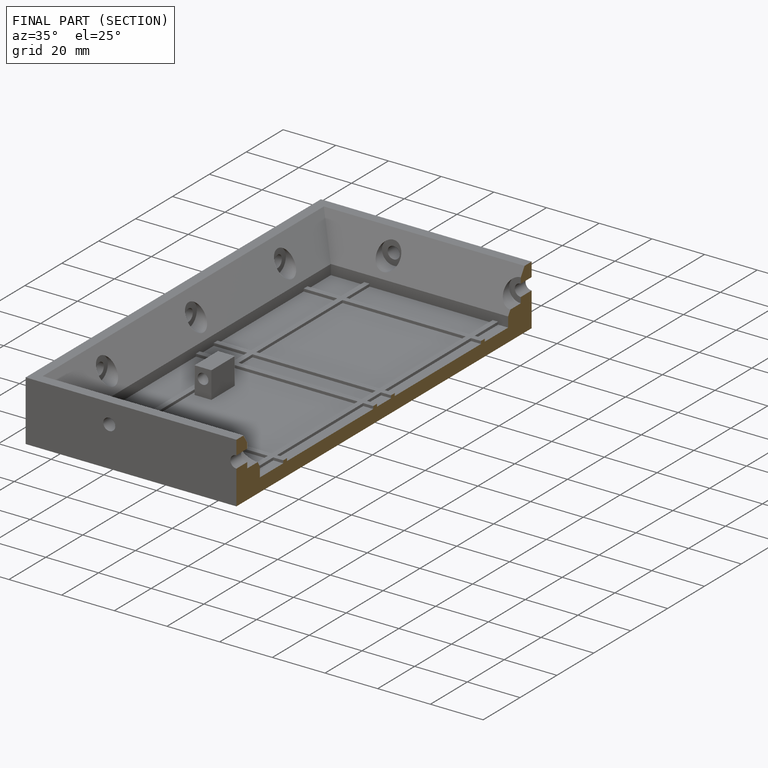
[diagram: finished part — half-section view (interior)]
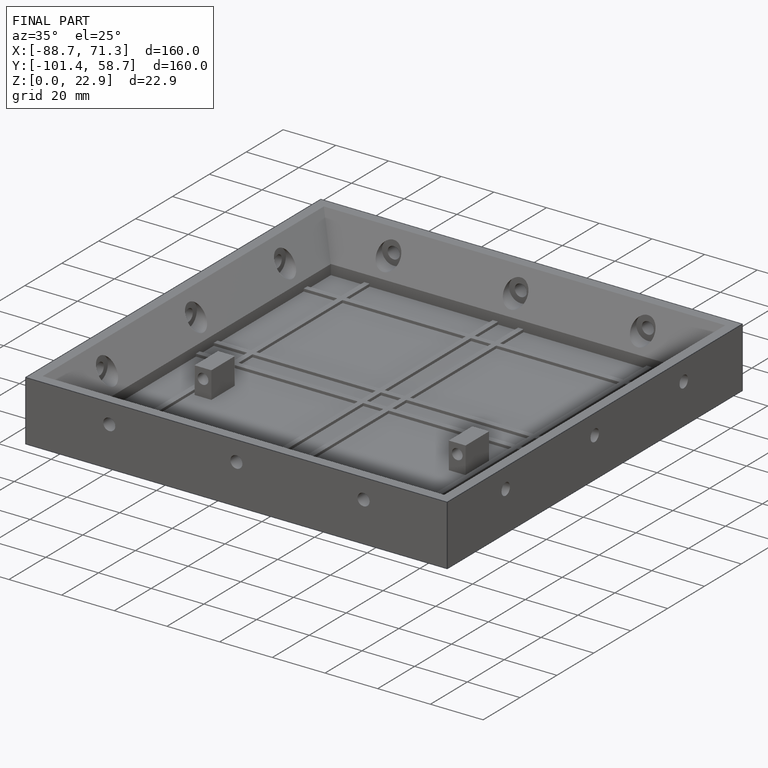
[diagram: finished part — iso view with bounding-box wireframe]
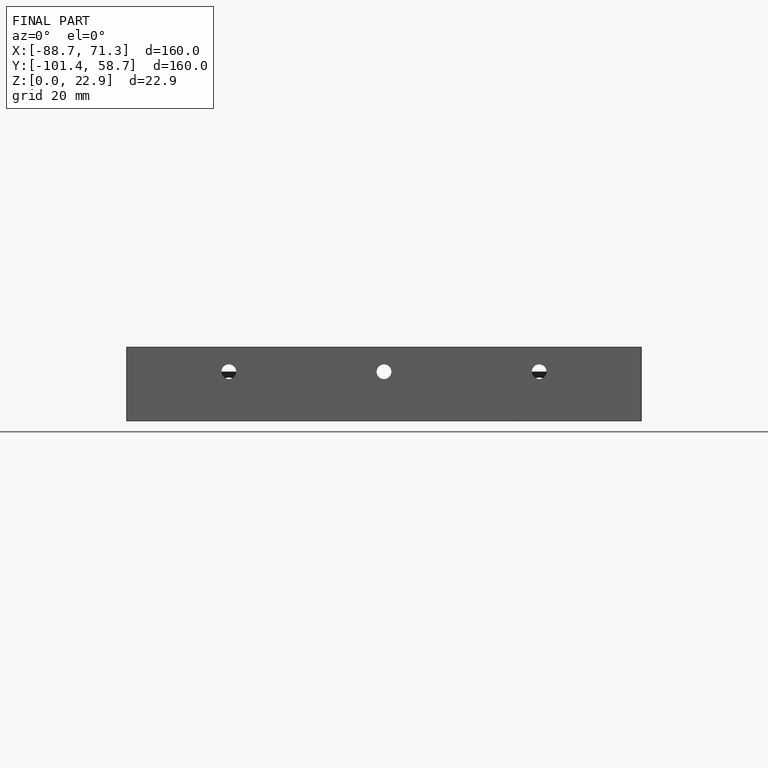
[diagram: finished part — front view with bounding-box wireframe]
